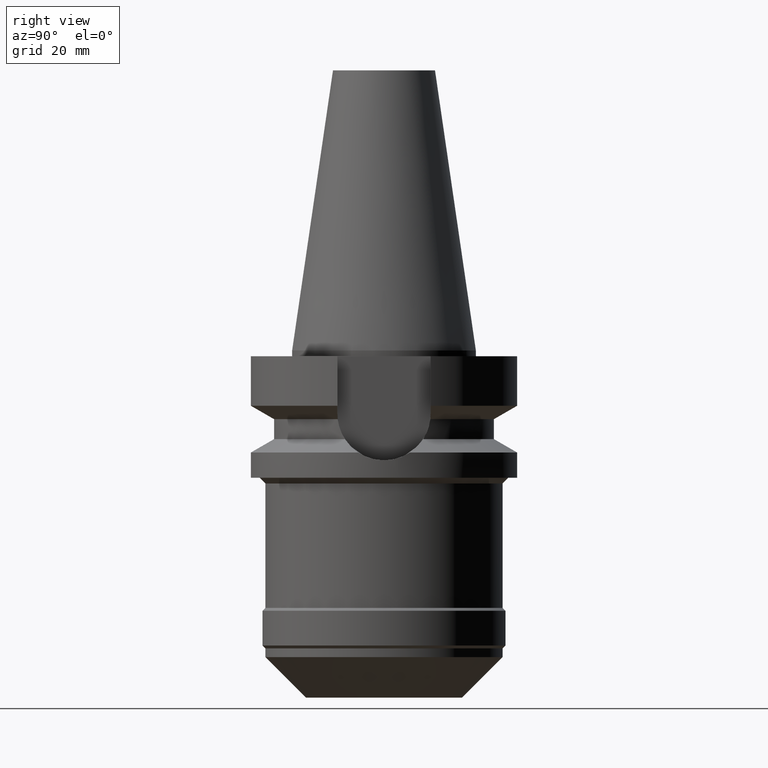
[diagram: clean part render]
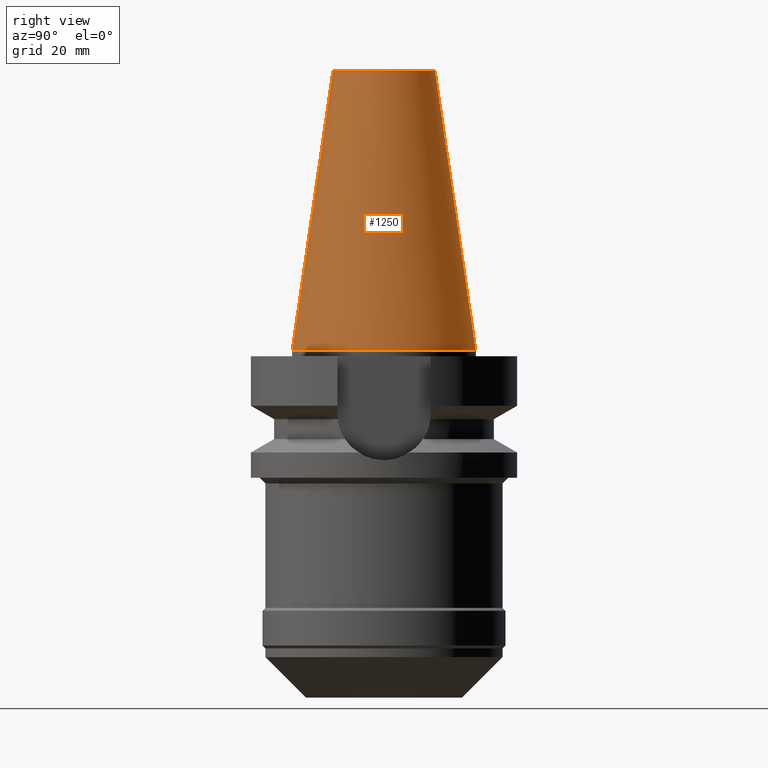
[diagram: same view with one face highlighted and labeled with its STEP entity id]
A machine part, right view. The second image highlights one B-rep face of the part: STEP entity #1250.
In plain terms, the highlighted conical surface has half-angle 8.297 deg.
Its self-contained STEP definition (entity closure, byte-faithful):
#17=DIRECTION('',(0.E0,1.443043893540E-1,-9.895333461856E-1));
#18=VECTOR('',#17,4.891194438931E1);
#19=CARTESIAN_POINT('',(0.E0,8.816791732783E0,4.84E1));
#20=LINE('',#19,#18);
#25=CARTESIAN_POINT('',(0.E0,1.521011324541E-14,-3.694822225953E-13));
#26=DIRECTION('',(0.E0,0.E0,-1.E0));
#27=DIRECTION('',(0.E0,1.E0,0.E0));
#28=AXIS2_PLACEMENT_3D('',#25,#26,#27);
#33=DIRECTION('',(0.E0,-1.443043893540E-1,-9.895333461856E-1));
#34=VECTOR('',#33,4.891194438931E1);
#35=CARTESIAN_POINT('',(0.E0,-8.816791732783E0,4.84E1));
#36=LINE('',#35,#34);
#56=CARTESIAN_POINT('',(0.E0,1.521011324541E-14,4.84E1));
#57=DIRECTION('',(0.E0,0.E0,-1.E0));
#58=DIRECTION('',(0.E0,1.E0,0.E0));
#59=AXIS2_PLACEMENT_3D('',#56,#57,#58);
#1079=CARTESIAN_POINT('',(0.E0,8.816791732783E0,4.84E1));
#1080=CARTESIAN_POINT('',(0.E0,1.5875E1,-1.776356839400E-13));
#1081=VERTEX_POINT('',#1079);
#1082=VERTEX_POINT('',#1080);
#1083=CARTESIAN_POINT('',(0.E0,-1.5875E1,-3.694822225953E-13));
#1084=VERTEX_POINT('',#1083);
#1085=CARTESIAN_POINT('',(0.E0,-8.816791732783E0,4.84E1));
#1086=VERTEX_POINT('',#1085);
#1235=CARTESIAN_POINT('',(0.E0,1.521011324541E-14,2.42E1));
#1236=DIRECTION('',(0.E0,0.E0,-1.E0));
#1237=DIRECTION('',(0.E0,-1.E0,0.E0));
#1238=AXIS2_PLACEMENT_3D('',#1235,#1236,#1237);
#1239=CONICAL_SURFACE('',#1238,1.234589586639E1,8.297E0);
#1241=ORIENTED_EDGE('',*,*,#1240,.T.);
#1243=ORIENTED_EDGE('',*,*,#1242,.T.);
#1245=ORIENTED_EDGE('',*,*,#1244,.F.);
#1247=ORIENTED_EDGE('',*,*,#1246,.F.);
#1248=EDGE_LOOP('',(#1241,#1243,#1245,#1247));
#1249=FACE_OUTER_BOUND('',#1248,.F.);
#29=CIRCLE('',#28,1.5875E1);
#60=CIRCLE('',#59,8.816791732783E0);
#1240=EDGE_CURVE('',#1081,#1082,#20,.T.);
#1242=EDGE_CURVE('',#1082,#1084,#29,.T.);
#1244=EDGE_CURVE('',#1086,#1084,#36,.T.);
#1246=EDGE_CURVE('',#1081,#1086,#60,.T.);
#1250=ADVANCED_FACE('',(#1249),#1239,.T.);